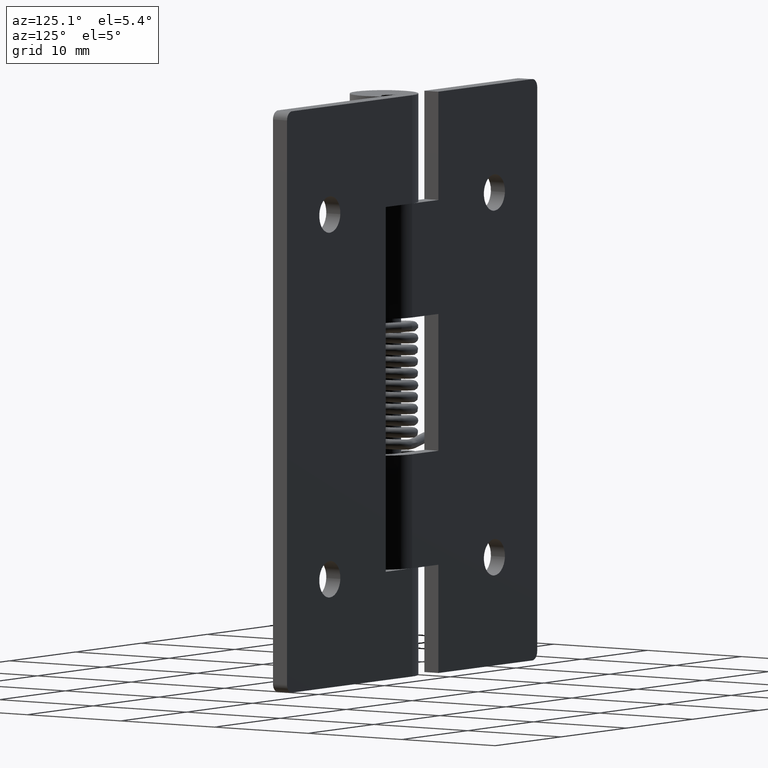
[diagram: clean part render]
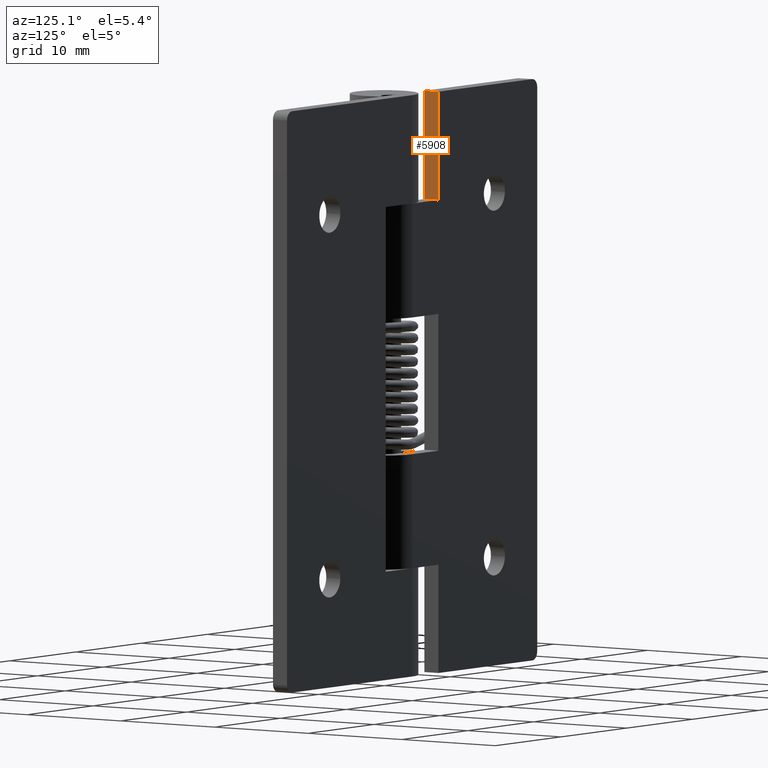
[diagram: same view with one face highlighted and labeled with its STEP entity id]
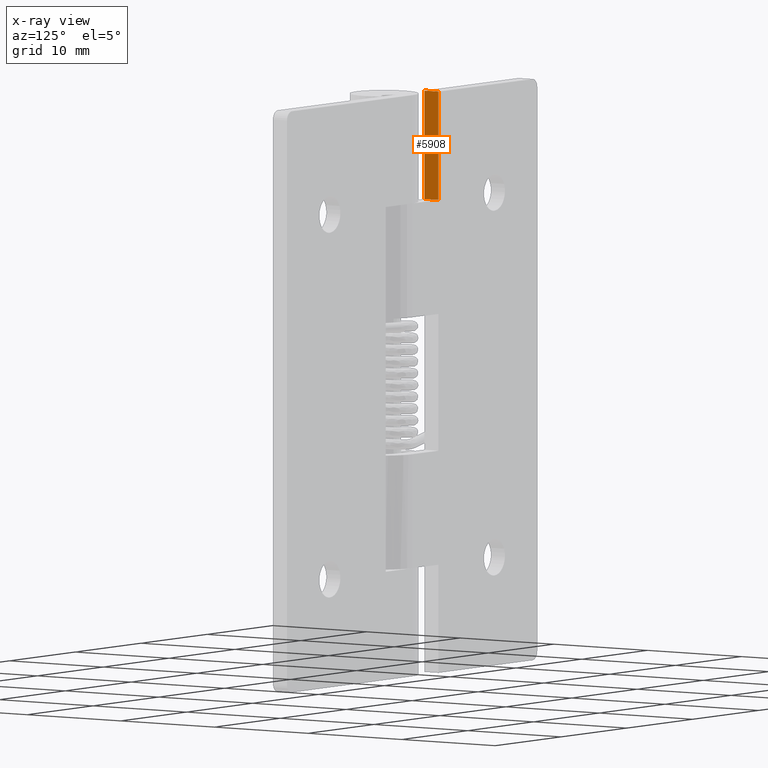
[diagram: x-ray of the same camera — body ghosted, the highlighted face saturated]
A machine part, auxiliary view. The second image highlights one B-rep face of the part: STEP entity #5908.
The next image is the same camera in x-ray: the body ghosted, the highlighted face saturated — about 0% of this face is hidden behind the body in this view.
In plain terms, the highlighted face is a freeform B-spline surface patch.
Its self-contained STEP definition (entity closure, byte-faithful):
#5873=CARTESIAN_POINT('',(-4.0,1.425075002907234,41.025475018412841));
#5874=CARTESIAN_POINT('',(-4.0,1.425075002907234,51.474525236397021));
#5875=CARTESIAN_POINT('',(-4.0,3.074925037325847,41.025475018412841));
#5876=CARTESIAN_POINT('',(-4.0,3.074925037325847,51.474525236397021));
#5877=B_SPLINE_SURFACE_WITH_KNOTS('',1,1,((#5873,#5875),(#5874,#5876)),.UNSPECIFIED.,.F.,.F.,.U.,(2,2),(2,2),(0.0,10.449050217984180),(0.041708334948495,0.958291687403247),.UNSPECIFIED.);
#5878=CARTESIAN_POINT('',(-4.0,3.0,41.500000000000000));
#5879=VERTEX_POINT('',#5878);
#5880=CARTESIAN_POINT('',(-4.0,1.499999999999946,41.500000000000000));
#5881=VERTEX_POINT('',#5880);
#5882=CARTESIAN_POINT('',(-4.0,3.0,41.500000000000000));
#5883=CARTESIAN_POINT('',(-4.0,1.499999999999946,41.500000000000000));
#5884=QUASI_UNIFORM_CURVE('',1,(#5882,#5883),.UNSPECIFIED.,.F.,.U.);
#5885=EDGE_CURVE('',#5879,#5881,#5884,.T.);
#5886=ORIENTED_EDGE('',*,*,#5885,.F.);
#5887=CARTESIAN_POINT('',(-4.0,3.0,51.0));
#5888=VERTEX_POINT('',#5887);
#5889=CARTESIAN_POINT('',(-4.0,3.0,51.0));
#5890=CARTESIAN_POINT('',(-4.0,3.0,41.500000000000000));
#5891=QUASI_UNIFORM_CURVE('',1,(#5889,#5890),.UNSPECIFIED.,.F.,.U.);
#5892=EDGE_CURVE('',#5888,#5879,#5891,.T.);
#5893=ORIENTED_EDGE('',*,*,#5892,.F.);
#5894=CARTESIAN_POINT('',(-4.0,1.499999999999946,51.0));
#5895=VERTEX_POINT('',#5894);
#5896=CARTESIAN_POINT('',(-4.0,3.0,51.0));
#5897=CARTESIAN_POINT('',(-4.0,1.499999999999946,51.0));
#5898=QUASI_UNIFORM_CURVE('',1,(#5896,#5897),.UNSPECIFIED.,.F.,.U.);
#5899=EDGE_CURVE('',#5888,#5895,#5898,.T.);
#5900=ORIENTED_EDGE('',*,*,#5899,.T.);
#5901=CARTESIAN_POINT('',(-4.0,1.499999999999946,41.500000000000000));
#5902=CARTESIAN_POINT('',(-4.0,1.499999999999946,51.0));
#5903=QUASI_UNIFORM_CURVE('',1,(#5901,#5902),.UNSPECIFIED.,.F.,.U.);
#5904=EDGE_CURVE('',#5881,#5895,#5903,.T.);
#5905=ORIENTED_EDGE('',*,*,#5904,.F.);
#5906=EDGE_LOOP('',(#5886,#5893,#5900,#5905));
#5907=FACE_OUTER_BOUND('',#5906,.T.);
#5908=ADVANCED_FACE('',(#5907),#5877,.F.);